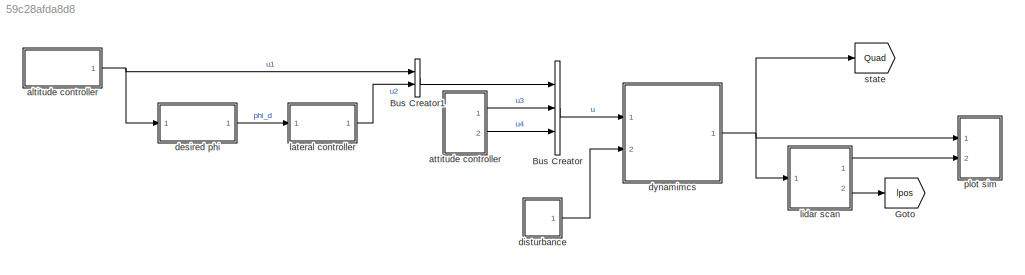
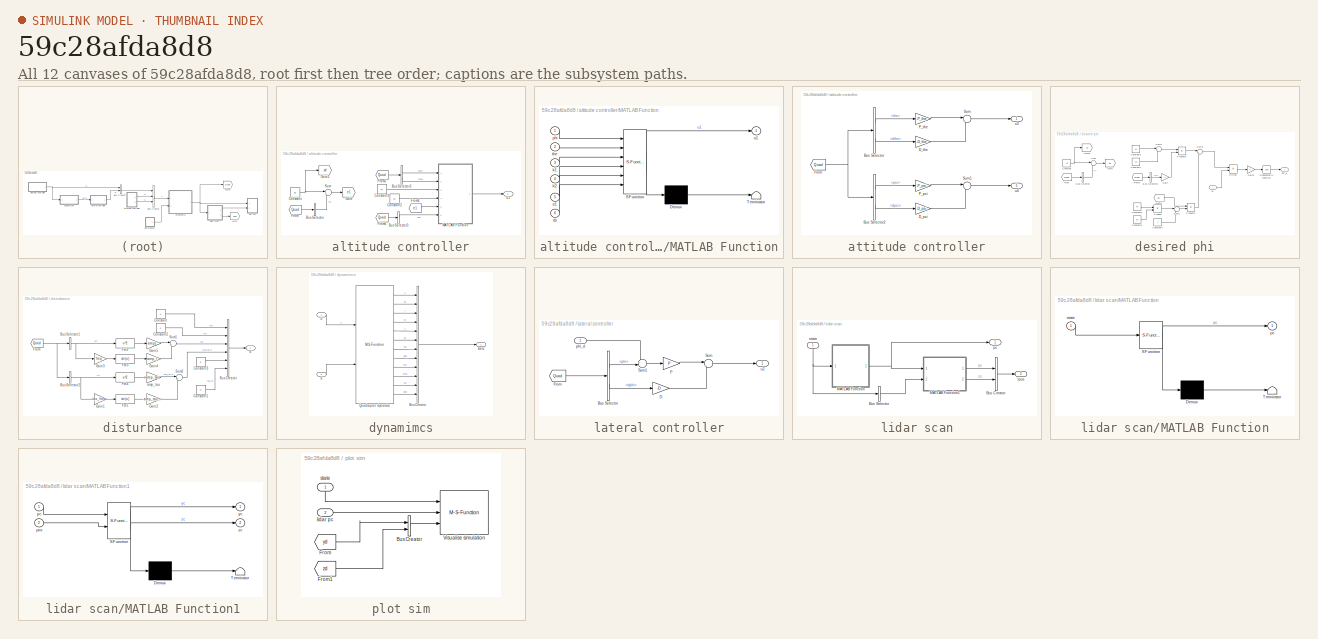
[diagram: thumbnail index - all 12 canvases of the model, root first then tree order]
MODEL slx_59c28afda8d8
KIND model
CONFIG AbsTol = auto
CONFIG EnableMultiTasking = off
CONFIG FixedStep = auto
CONFIG MaxStep = auto
CONFIG MinStep = auto
CONFIG RelTol = 1e-3
CONFIG SampleTimeConstraint = Unconstrained
CONFIG Solver = VariableStepAuto
CONFIG SolverName = VariableStepAuto
CONFIG StartTime = 0.0
CONFIG StopTime = 10.0
WORKSPACE source: external: MAT-File  (data not in archive)
BLOCK [BusCreator] Bus Creator
  DisplayOption = bar
  InheritFromInputs = on
  Inputs = 3
  Ports = [3, 1]
BLOCK [BusCreator] Bus Creator1
  DisplayOption = bar
  InheritFromInputs = on
  Inputs = 2
  Ports = [2, 1]
BLOCK [Goto] Goto
  GotoTag = lpos
  TagVisibility = global
BLOCK [SubSystem] altitude controller
  Ports = [0, 1]
  RequestExecContextInheritance = off
  Variant = off
BLOCK [BusSelector] altitude controller/Bus Selector
  OutputAsBus = off
  OutputSignals = z
  Ports = [1, 1]
BLOCK [BusSelector] altitude controller/Bus Selector2
  OutputAsBus = off
  OutputSignals = phi,the
  Ports = [1, 2]
BLOCK [BusSelector] altitude controller/Bus Selector3
  OutputAsBus = off
  OutputSignals = dz
  Ports = [1, 1]
BLOCK [Constant] altitude controller/Constant
  Value = zd
BLOCK [Constant] altitude controller/Constant1
  Value = k1
BLOCK [Constant] altitude controller/Constant2
  Value = k2
BLOCK [From] altitude controller/From
  GotoTag = Quad
  TagVisibility = global
BLOCK [From] altitude controller/From4
  GotoTag = e1
BLOCK [From] altitude controller/From5
  GotoTag = Quad
  TagVisibility = global
BLOCK [From] altitude controller/From6
  GotoTag = Quad
  TagVisibility = global
BLOCK [Goto] altitude controller/Goto
  GotoTag = e1
BLOCK [Goto] altitude controller/Goto1
  GotoTag = zd
  TagVisibility = global
BLOCK [SubSystem] altitude controller/MATLAB Function
  ErrorFcn = Stateflow.Translate.translate
  PermitHierarchicalResolution = ExplicitOnly
  Ports = [6, 1]
  RequestExecContextInheritance = off
  SFBlockType = MATLAB Function
  TreatAsAtomicUnit = on
  Variant = off
BLOCK [Demux] altitude controller/MATLAB Function/ Demux 
  Outputs = 1
  Ports = [1, 1]
BLOCK [S-Function] altitude controller/MATLAB Function/ SFunction 
  EnableBusSupport = on
  FunctionName = sf_sfun
  PortCounts = [6 2]
  Ports = [6, 2]
  SFcnIsStateOwnerBlock = off
  SFunctionDeploymentMode = off
  Tag = Stateflow S-Function backstepping 1
BLOCK [Terminator] altitude controller/MATLAB Function/ Terminator 
BLOCK [Inport] altitude controller/MATLAB Function/dz
  IconDisplay = Port number
  Port = 6
BLOCK [Inport] altitude controller/MATLAB Function/e1
  IconDisplay = Port number
  Port = 5
BLOCK [Inport] altitude controller/MATLAB Function/k1
  IconDisplay = Port number
  Port = 3
BLOCK [Inport] altitude controller/MATLAB Function/k2
  IconDisplay = Port number
  Port = 4
BLOCK [Inport] altitude controller/MATLAB Function/phi
  IconDisplay = Port number
BLOCK [Inport] altitude controller/MATLAB Function/the
  IconDisplay = Port number
  Port = 2
BLOCK [Outport] altitude controller/MATLAB Function/u1
  IconDisplay = Port number
BLOCK [Sum] altitude controller/Sum
  IconShape = round
  InputSameDT = off
  Inputs = |+-
  OutDataTypeStr = Inherit: Inherit via internal rule
  Ports = [2, 1]
  SaturateOnIntegerOverflow = off
BLOCK [Outport] altitude controller/u1
  IconDisplay = Port number
BLOCK [SubSystem] attitude controller
  Ports = [0, 2]
  RequestExecContextInheritance = off
  Variant = off
BLOCK [BusSelector] attitude controller/Bus Selector
  OutputAsBus = off
  OutputSignals = the,dthe
  Ports = [1, 2]
BLOCK [BusSelector] attitude controller/Bus Selector2
  OutputAsBus = off
  OutputSignals = psi,dpsi
  Ports = [1, 2]
BLOCK [Gain] attitude controller/D_psi
  Gain = -D_psi
  OutDataTypeStr = Inherit: Inherit via internal rule
  ParamDataTypeStr = Inherit: Inherit via internal rule
  SaturateOnIntegerOverflow = off
BLOCK [Gain] attitude controller/D_the
  Gain = -D_the
  OutDataTypeStr = Inherit: Inherit via internal rule
  ParamDataTypeStr = Inherit: Inherit via internal rule
  SaturateOnIntegerOverflow = off
BLOCK [From] attitude controller/From
  GotoTag = Quad
  TagVisibility = global
BLOCK [Gain] attitude controller/P_psi
  Gain = -P_psi
  OutDataTypeStr = Inherit: Inherit via internal rule
  ParamDataTypeStr = Inherit: Inherit via internal rule
  SaturateOnIntegerOverflow = off
BLOCK [Gain] attitude controller/P_the
  Gain = -P_the
  OutDataTypeStr = Inherit: Inherit via internal rule
  ParamDataTypeStr = Inherit: Inherit via internal rule
  SaturateOnIntegerOverflow = off
BLOCK [Sum] attitude controller/Sum
  IconShape = round
  InputSameDT = off
  Inputs = |++
  OutDataTypeStr = Inherit: Inherit via internal rule
  Ports = [2, 1]
  SaturateOnIntegerOverflow = off
BLOCK [Sum] attitude controller/Sum1
  IconShape = round
  InputSameDT = off
  Inputs = |++
  OutDataTypeStr = Inherit: Inherit via internal rule
  Ports = [2, 1]
  SaturateOnIntegerOverflow = off
BLOCK [Outport] attitude controller/u3
  IconDisplay = Port number
BLOCK [Outport] attitude controller/u4 
  IconDisplay = Port number
  Port = 2
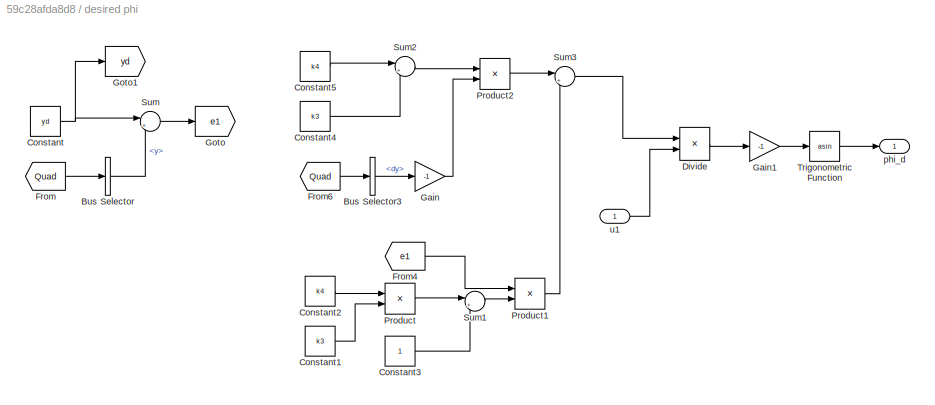
BLOCK [SubSystem] desired phi
  Ports = [1, 1]
  RequestExecContextInheritance = off
  Variant = off
BLOCK [BusSelector] desired phi/Bus Selector
  OutputAsBus = off
  OutputSignals = y
  Ports = [1, 1]
BLOCK [BusSelector] desired phi/Bus Selector3
  OutputAsBus = off
  OutputSignals = dy
  Ports = [1, 1]
BLOCK [Constant] desired phi/Constant
  Value = yd
BLOCK [Constant] desired phi/Constant1
  Value = k3
BLOCK [Constant] desired phi/Constant2
  Value = k4
BLOCK [Constant] desired phi/Constant3
BLOCK [Constant] desired phi/Constant4
  Value = k3
BLOCK [Constant] desired phi/Constant5
  Value = k4
BLOCK [Product] desired phi/Divide
  InputSameDT = off
  Inputs = */
  OutDataTypeStr = Inherit: Inherit via internal rule
  Ports = [2, 1]
  RndMeth = Floor
  SaturateOnIntegerOverflow = off
BLOCK [From] desired phi/From
  GotoTag = Quad
  TagVisibility = global
BLOCK [From] desired phi/From4
  GotoTag = e1
BLOCK [From] desired phi/From6
  GotoTag = Quad
  TagVisibility = global
BLOCK [Gain] desired phi/Gain
  Gain = -1
  OutDataTypeStr = Inherit: Inherit via internal rule
  ParamDataTypeStr = Inherit: Inherit via internal rule
  SaturateOnIntegerOverflow = off
BLOCK [Gain] desired phi/Gain1
  Gain = -1
  OutDataTypeStr = Inherit: Inherit via internal rule
  ParamDataTypeStr = Inherit: Inherit via internal rule
  SaturateOnIntegerOverflow = off
BLOCK [Goto] desired phi/Goto
  GotoTag = e1
BLOCK [Goto] desired phi/Goto1
  GotoTag = yd
  TagVisibility = global
BLOCK [Product] desired phi/Product
  InputSameDT = off
  OutDataTypeStr = Inherit: Inherit via internal rule
  Ports = [2, 1]
  RndMeth = Floor
  SaturateOnIntegerOverflow = off
BLOCK [Product] desired phi/Product1
  InputSameDT = off
  OutDataTypeStr = Inherit: Inherit via internal rule
  Ports = [2, 1]
  RndMeth = Floor
  SaturateOnIntegerOverflow = off
BLOCK [Product] desired phi/Product2
  InputSameDT = off
  OutDataTypeStr = Inherit: Inherit via internal rule
  Ports = [2, 1]
  RndMeth = Floor
  SaturateOnIntegerOverflow = off
BLOCK [Sum] desired phi/Sum
  IconShape = round
  InputSameDT = off
  Inputs = |+-
  OutDataTypeStr = Inherit: Inherit via internal rule
  Ports = [2, 1]
  SaturateOnIntegerOverflow = off
BLOCK [Sum] desired phi/Sum1
  IconShape = round
  InputSameDT = off
  Inputs = |++
  OutDataTypeStr = Inherit: Inherit via internal rule
  Ports = [2, 1]
  SaturateOnIntegerOverflow = off
BLOCK [Sum] desired phi/Sum2
  IconShape = round
  InputSameDT = off
  Inputs = |++
  OutDataTypeStr = Inherit: Inherit via internal rule
  Ports = [2, 1]
  SaturateOnIntegerOverflow = off
BLOCK [Sum] desired phi/Sum3
  IconShape = round
  InputSameDT = off
  Inputs = |++
  OutDataTypeStr = Inherit: Inherit via internal rule
  Ports = [2, 1]
  SaturateOnIntegerOverflow = off
BLOCK [Trigonometry] desired phi/Trigonometric Function
  Operator = asin
  Ports = [1, 1]
BLOCK [Outport] desired phi/phi_d
  IconDisplay = Port number
BLOCK [Inport] desired phi/u1
  IconDisplay = Port number
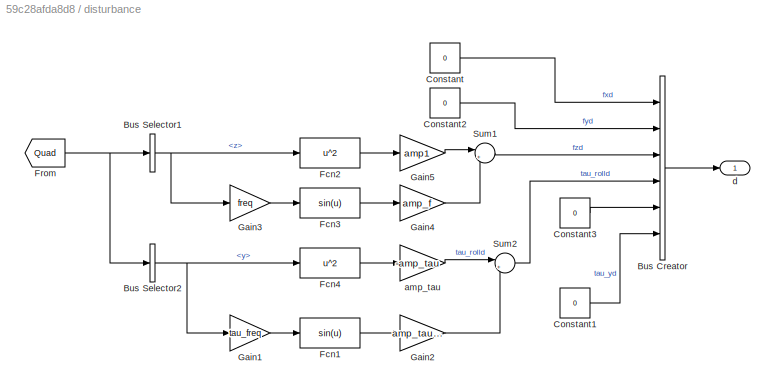
BLOCK [SubSystem] disturbance
  Ports = [0, 1]
  RequestExecContextInheritance = off
  Variant = off
BLOCK [BusCreator] disturbance/Bus Creator
  DisplayOption = bar
  InheritFromInputs = on
  Inputs = 6
  Ports = [6, 1]
BLOCK [BusSelector] disturbance/Bus Selector1
  OutputAsBus = off
  OutputSignals = z
  Ports = [1, 1]
BLOCK [BusSelector] disturbance/Bus Selector2
  OutputAsBus = off
  OutputSignals = y
  Ports = [1, 1]
BLOCK [Constant] disturbance/Constant
  Value = 0
BLOCK [Constant] disturbance/Constant1
  Value = 0
BLOCK [Constant] disturbance/Constant2
  Value = 0
BLOCK [Constant] disturbance/Constant3
  Value = 0
BLOCK [Fcn] disturbance/Fcn1
  Expr = sin(u)
BLOCK [Fcn] disturbance/Fcn2
  Expr = u^2
BLOCK [Fcn] disturbance/Fcn3
  Expr = sin(u)
BLOCK [Fcn] disturbance/Fcn4
  Expr = u^2
BLOCK [From] disturbance/From
  GotoTag = Quad
  TagVisibility = global
BLOCK [Gain] disturbance/Gain1
  Gain = tau_freq
  OutDataTypeStr = Inherit: Inherit via internal rule
  ParamDataTypeStr = Inherit: Inherit via internal rule
  SaturateOnIntegerOverflow = off
BLOCK [Gain] disturbance/Gain2
  Gain = amp_tau_freq
  OutDataTypeStr = Inherit: Inherit via internal rule
  ParamDataTypeStr = Inherit: Inherit via internal rule
  SaturateOnIntegerOverflow = off
BLOCK [Gain] disturbance/Gain3
  Gain = freq
  OutDataTypeStr = Inherit: Inherit via internal rule
  ParamDataTypeStr = Inherit: Inherit via internal rule
  SaturateOnIntegerOverflow = off
BLOCK [Gain] disturbance/Gain4
  Gain = amp_f
  OutDataTypeStr = Inherit: Inherit via internal rule
  ParamDataTypeStr = Inherit: Inherit via internal rule
  SaturateOnIntegerOverflow = off
BLOCK [Gain] disturbance/Gain5
  Gain = amp1
  OutDataTypeStr = Inherit: Inherit via internal rule
  ParamDataTypeStr = Inherit: Inherit via internal rule
  SaturateOnIntegerOverflow = off
BLOCK [Sum] disturbance/Sum1
  IconShape = round
  InputSameDT = off
  Inputs = |++
  OutDataTypeStr = Inherit: Inherit via internal rule
  Ports = [2, 1]
  SaturateOnIntegerOverflow = off
BLOCK [Sum] disturbance/Sum2
  IconShape = round
  InputSameDT = off
  Inputs = |++
  OutDataTypeStr = Inherit: Inherit via internal rule
  Ports = [2, 1]
  SaturateOnIntegerOverflow = off
BLOCK [Gain] disturbance/amp_tau
  Gain = -amp_tau
  OutDataTypeStr = Inherit: Inherit via internal rule
  ParamDataTypeStr = Inherit: Inherit via internal rule
  SaturateOnIntegerOverflow = off
BLOCK [Outport] disturbance/d
  IconDisplay = Port number
BLOCK [SubSystem] dynamimcs
  Ports = [2, 1]
  RequestExecContextInheritance = off
  Variant = off
BLOCK [BusCreator] dynamimcs/Bus Creator
  DisplayOption = bar
  InheritFromInputs = on
  Inputs = 12
  Ports = [12, 1]
BLOCK [M-S-Function] dynamimcs/Quadcopter dynamics
  FunctionName = SF_quad_dynamics_BS
  Parameters = quad
  Ports = [2, 12]
BLOCK [Inport] dynamimcs/d
  IconDisplay = Port number
  Port = 2
BLOCK [Outport] dynamimcs/state
  IconDisplay = Port number
BLOCK [Inport] dynamimcs/u
  IconDisplay = Port number
BLOCK [SubSystem] lateral controller
  Ports = [1, 1]
  RequestExecContextInheritance = off
  Variant = off
BLOCK [BusSelector] lateral controller/Bus Selector
  OutputAsBus = off
  OutputSignals = phi,dphi
  Ports = [1, 2]
BLOCK [Gain] lateral controller/D
  Gain = -D
  OutDataTypeStr = Inherit: Inherit via internal rule
  ParamDataTypeStr = Inherit: Inherit via internal rule
  SaturateOnIntegerOverflow = off
BLOCK [From] lateral controller/From
  GotoTag = Quad
  TagVisibility = global
BLOCK [Gain] lateral controller/P
  Gain = P
  OutDataTypeStr = Inherit: Inherit via internal rule
  ParamDataTypeStr = Inherit: Inherit via internal rule
  SaturateOnIntegerOverflow = off
BLOCK [Sum] lateral controller/Sum
  IconShape = round
  InputSameDT = off
  Inputs = |++
  OutDataTypeStr = Inherit: Inherit via internal rule
  Ports = [2, 1]
  SaturateOnIntegerOverflow = off
BLOCK [Sum] lateral controller/Sum1
  IconShape = round
  InputSameDT = off
  Inputs = +-|
  OutDataTypeStr = Inherit: Inherit via internal rule
  Ports = [2, 1]
  SaturateOnIntegerOverflow = off
BLOCK [Inport] lateral controller/phi_d
  IconDisplay = Port number
BLOCK [Outport] lateral controller/u2
  IconDisplay = Port number
BLOCK [SubSystem] lidar scan
  Ports = [1, 2]
  RequestExecContextInheritance = off
  Variant = off
BLOCK [BusCreator] lidar scan/Bus Creator
  DisplayOption = bar
  InheritFromInputs = on
  Inputs = 2
  Ports = [2, 1]
BLOCK [BusSelector] lidar scan/Bus Selector
  OutputAsBus = on
  OutputSignals = y,z
  Ports = [1, 1]
BLOCK [SubSystem] lidar scan/MATLAB Function
  ErrorFcn = Stateflow.Translate.translate
  PermitHierarchicalResolution = ExplicitOnly
  Ports = [1, 1]
  RequestExecContextInheritance = off
  SFBlockType = MATLAB Function
  TreatAsAtomicUnit = on
  Variant = off
BLOCK [Demux] lidar scan/MATLAB Function/ Demux 
  Outputs = 1
  Ports = [1, 1]
BLOCK [S-Function] lidar scan/MATLAB Function/ SFunction 
  EnableBusSupport = on
  FunctionName = sf_sfun
  PortCounts = [1 2]
  Ports = [1, 2]
  SFcnIsStateOwnerBlock = off
  SFunctionDeploymentMode = off
  Tag = Stateflow S-Function backstepping 2
BLOCK [Terminator] lidar scan/MATLAB Function/ Terminator 
BLOCK [Outport] lidar scan/MATLAB Function/pc
  IconDisplay = Port number
BLOCK [Inport] lidar scan/MATLAB Function/state
  IconDisplay = Port number
BLOCK [SubSystem] lidar scan/MATLAB Function1
  ErrorFcn = Stateflow.Translate.translate
  PermitHierarchicalResolution = ExplicitOnly
  Ports = [2, 2]
  RequestExecContextInheritance = off
  SFBlockType = MATLAB Function
  TreatAsAtomicUnit = on
  Variant = off
BLOCK [Demux] lidar scan/MATLAB Function1/ Demux 
  Outputs = 1
  Ports = [1, 1]
BLOCK [S-Function] lidar scan/MATLAB Function1/ SFunction 
  EnableBusSupport = on
  FunctionName = sf_sfun
  PortCounts = [2 3]
  Ports = [2, 3]
  SFcnIsStateOwnerBlock = off
  SFunctionDeploymentMode = off
  Tag = Stateflow S-Function backstepping 3
BLOCK [Terminator] lidar scan/MATLAB Function1/ Terminator 
BLOCK [Inport] lidar scan/MATLAB Function1/pc
  IconDisplay = Port number
BLOCK [Inport] lidar scan/MATLAB Function1/pos
  IconDisplay = Port number
  Port = 2
BLOCK [Outport] lidar scan/MATLAB Function1/yc
  IconDisplay = Port number
BLOCK [Outport] lidar scan/MATLAB Function1/zc
  IconDisplay = Port number
  Port = 2
BLOCK [Outport] lidar scan/lpos
  IconDisplay = Port number
  Port = 2
BLOCK [Outport] lidar scan/pc
  IconDisplay = Port number
BLOCK [Inport] lidar scan/state
  IconDisplay = Port number
BLOCK [SubSystem] plot sim
  Ports = [2]
  RequestExecContextInheritance = off
  Variant = off
BLOCK [BusCreator] plot sim/Bus Creator
  DisplayOption = bar
  InheritFromInputs = on
  Inputs = 2
  Ports = [2, 1]
BLOCK [From] plot sim/From
  GotoTag = yd
  TagVisibility = global
BLOCK [From] plot sim/From1
  GotoTag = zd
  TagVisibility = global
BLOCK [M-S-Function] plot sim/Visualise simulation 
  FunctionName = SF_plot_sim_BS
  Parameters = quad
  Ports = [3]
BLOCK [Inport] plot sim/lidar pc
  IconDisplay = Port number
  Port = 2
BLOCK [Inport] plot sim/state
  IconDisplay = Port number
BLOCK [Goto] state
  GotoTag = Quad
  TagVisibility = global
LINE Bus Creator1:1 -> Bus Creator:1
LINE Bus Creator:1 -> dynamimcs:1
LINE altitude controller/Bus Selector2:1 -> altitude controller/MATLAB Function:1
LINE altitude controller/Bus Selector2:2 -> altitude controller/MATLAB Function:2
LINE altitude controller/Bus Selector3:1 -> altitude controller/MATLAB Function:6
LINE altitude controller/Bus Selector:1 -> altitude controller/Sum:2
LINE altitude controller/Constant1:1 -> altitude controller/MATLAB Function:3
LINE altitude controller/Constant2:1 -> altitude controller/MATLAB Function:4
NET altitude controller/Constant:1 -> altitude controller/Goto1:1, altitude controller/Sum:1
LINE altitude controller/From4:1 -> altitude controller/MATLAB Function:5
LINE altitude controller/From5:1 -> altitude controller/Bus Selector2:1
LINE altitude controller/From6:1 -> altitude controller/Bus Selector3:1
LINE altitude controller/From:1 -> altitude controller/Bus Selector:1
LINE altitude controller/MATLAB Function:1 -> altitude controller/u1:1
LINE altitude controller/Sum:1 -> altitude controller/Goto:1
NET altitude controller:1 -> Bus Creator1:1, desired phi:1
LINE attitude controller/Bus Selector2:1 -> attitude controller/P_psi:1
LINE attitude controller/Bus Selector2:2 -> attitude controller/D_psi:1
LINE attitude controller/Bus Selector:1 -> attitude controller/P_the:1
LINE attitude controller/Bus Selector:2 -> attitude controller/D_the:1
LINE attitude controller/D_psi:1 -> attitude controller/Sum1:2
LINE attitude controller/D_the:1 -> attitude controller/Sum:2
NET attitude controller/From:1 -> attitude controller/Bus Selector2:1, attitude controller/Bus Selector:1
LINE attitude controller/P_psi:1 -> attitude controller/Sum1:1
LINE attitude controller/P_the:1 -> attitude controller/Sum:1
LINE attitude controller/Sum1:1 -> attitude controller/u4 :1
LINE attitude controller/Sum:1 -> attitude controller/u3:1
LINE attitude controller:1 -> Bus Creator:2
LINE attitude controller:2 -> Bus Creator:3
LINE desired phi/Bus Selector3:1 -> desired phi/Gain:1
LINE desired phi/Bus Selector:1 -> desired phi/Sum:2
LINE desired phi/Constant1:1 -> desired phi/Product:2
LINE desired phi/Constant2:1 -> desired phi/Product:1
LINE desired phi/Constant3:1 -> desired phi/Sum1:2
LINE desired phi/Constant4:1 -> desired phi/Sum2:2
LINE desired phi/Constant5:1 -> desired phi/Sum2:1
NET desired phi/Constant:1 -> desired phi/Goto1:1, desired phi/Sum:1
LINE desired phi/Divide:1 -> desired phi/Gain1:1
LINE desired phi/From4:1 -> desired phi/Product1:1
LINE desired phi/From6:1 -> desired phi/Bus Selector3:1
LINE desired phi/From:1 -> desired phi/Bus Selector:1
LINE desired phi/Gain1:1 -> desired phi/Trigonometric Function:1
LINE desired phi/Gain:1 -> desired phi/Product2:2
LINE desired phi/Product1:1 -> desired phi/Sum3:2
LINE desired phi/Product2:1 -> desired phi/Sum3:1
LINE desired phi/Product:1 -> desired phi/Sum1:1
LINE desired phi/Sum1:1 -> desired phi/Product1:2
LINE desired phi/Sum2:1 -> desired phi/Product2:1
LINE desired phi/Sum3:1 -> desired phi/Divide:1
LINE desired phi/Sum:1 -> desired phi/Goto:1
LINE desired phi/Trigonometric Function:1 -> desired phi/phi_d:1
LINE desired phi/u1:1 -> desired phi/Divide:2
LINE desired phi:1 -> lateral controller:1
LINE disturbance/Bus Creator:1 -> disturbance/d:1
NET disturbance/Bus Selector1:1 -> disturbance/Fcn2:1, disturbance/Gain3:1
NET disturbance/Bus Selector2:1 -> disturbance/Fcn4:1, disturbance/Gain1:1
LINE disturbance/Constant1:1 -> disturbance/Bus Creator:6
LINE disturbance/Constant2:1 -> disturbance/Bus Creator:2
LINE disturbance/Constant3:1 -> disturbance/Bus Creator:5
LINE disturbance/Constant:1 -> disturbance/Bus Creator:1
LINE disturbance/Fcn1:1 -> disturbance/Gain2:1
LINE disturbance/Fcn2:1 -> disturbance/Gain5:1
LINE disturbance/Fcn3:1 -> disturbance/Gain4:1
LINE disturbance/Fcn4:1 -> disturbance/amp_tau:1
NET disturbance/From:1 -> disturbance/Bus Selector1:1, disturbance/Bus Selector2:1
LINE disturbance/Gain1:1 -> disturbance/Fcn1:1
LINE disturbance/Gain2:1 -> disturbance/Sum2:2
LINE disturbance/Gain3:1 -> disturbance/Fcn3:1
LINE disturbance/Gain4:1 -> disturbance/Sum1:2
LINE disturbance/Gain5:1 -> disturbance/Sum1:1
LINE disturbance/Sum1:1 -> disturbance/Bus Creator:3
LINE disturbance/Sum2:1 -> disturbance/Bus Creator:4
LINE disturbance/amp_tau:1 -> disturbance/Sum2:1
LINE disturbance:1 -> dynamimcs:2
LINE dynamimcs/Bus Creator:1 -> dynamimcs/state:1
LINE dynamimcs/Quadcopter dynamics:1 -> dynamimcs/Bus Creator:1
LINE dynamimcs/Quadcopter dynamics:10 -> dynamimcs/Bus Creator:10
LINE dynamimcs/Quadcopter dynamics:11 -> dynamimcs/Bus Creator:11
LINE dynamimcs/Quadcopter dynamics:12 -> dynamimcs/Bus Creator:12
LINE dynamimcs/Quadcopter dynamics:2 -> dynamimcs/Bus Creator:2
LINE dynamimcs/Quadcopter dynamics:3 -> dynamimcs/Bus Creator:3
LINE dynamimcs/Quadcopter dynamics:4 -> dynamimcs/Bus Creator:4
LINE dynamimcs/Quadcopter dynamics:5 -> dynamimcs/Bus Creator:5
LINE dynamimcs/Quadcopter dynamics:6 -> dynamimcs/Bus Creator:6
LINE dynamimcs/Quadcopter dynamics:7 -> dynamimcs/Bus Creator:7
LINE dynamimcs/Quadcopter dynamics:8 -> dynamimcs/Bus Creator:8
LINE dynamimcs/Quadcopter dynamics:9 -> dynamimcs/Bus Creator:9
LINE dynamimcs/d:1 -> dynamimcs/Quadcopter dynamics:2
LINE dynamimcs/u:1 -> dynamimcs/Quadcopter dynamics:1
NET dynamimcs:1 -> lidar scan:1, plot sim:1, state:1
LINE lateral controller/Bus Selector:1 -> lateral controller/Sum1:2
LINE lateral controller/Bus Selector:2 -> lateral controller/D:1
LINE lateral controller/D:1 -> lateral controller/Sum:2
LINE lateral controller/From:1 -> lateral controller/Bus Selector:1
LINE lateral controller/P:1 -> lateral controller/Sum:1
LINE lateral controller/Sum1:1 -> lateral controller/P:1
LINE lateral controller/Sum:1 -> lateral controller/u2:1
LINE lateral controller/phi_d:1 -> lateral controller/Sum1:1
LINE lateral controller:1 -> Bus Creator1:2
LINE lidar scan/Bus Creator:1 -> lidar scan/lpos:1
LINE lidar scan/Bus Selector:1 -> lidar scan/MATLAB Function1:2
LINE lidar scan/MATLAB Function1:1 -> lidar scan/Bus Creator:1
LINE lidar scan/MATLAB Function1:2 -> lidar scan/Bus Creator:2
NET lidar scan/MATLAB Function:1 -> lidar scan/MATLAB Function1:1, lidar scan/pc:1
NET lidar scan/state:1 -> lidar scan/Bus Selector:1, lidar scan/MATLAB Function:1
LINE lidar scan:1 -> plot sim:2
LINE lidar scan:2 -> Goto:1
LINE plot sim/Bus Creator:1 -> plot sim/Visualise simulation :3
LINE plot sim/From1:1 -> plot sim/Bus Creator:2
LINE plot sim/From:1 -> plot sim/Bus Creator:1
LINE plot sim/lidar pc:1 -> plot sim/Visualise simulation :2
LINE plot sim/state:1 -> plot sim/Visualise simulation :1
note: NET lines group one-source signal fan-out (src -> all destinations, sorted); 1:1 wires keep LINE
CHART altitude controller/MATLAB Function states=1 transitions=1
  STATE_LABEL 'eML_blk_kernel()'
  STATE_LABEL 'SCRIPT:\nfunction u1 = ctrl_law(phi, the, k1, k2, e1, dz)\n\nu1 = (9.81 + 0 - (k1+k2)*dz + (1+k1*k2)*e1)/(cos(phi)*cos(the)) ;\n'
CHART lidar scan/MATLAB Function states=1 transitions=1
  STATE_LABEL 'eML_blk_kernel()'
  STATE_LABEL 'SCRIPT:\n%% need another and condition inside wall check\n\n\nfunction pc = lidar_scan_gen(state)\n\n%% init\ntunnel_r = 1.5;\ntunnel_l = 6; % tunnel length;\n\na = -135:0.25:135; % lidar FOV is 270 deg\n\na = a .* pi/180;\n\npc = zeros(length(a)+5, 3);\ntemp = zeros(length(a), 3);\n\nz_ceiling = 2 * tunnel_r;\nz_ground = 0;\n\nwall_left = -tunnel_r;\nwall_right = tunnel_r;\n\npos_x = state(1);\npos_y = state(3);\npos_z =...<+1356ch>'
CHART lidar scan/MATLAB Function1 states=1 transitions=1
  STATE_LABEL 'eML_blk_kernel()'
  STATE_LABEL 'SCRIPT:\nfunction [yc, zc] = get_centroid(pc, pos)\n\n% init\npc = pc(6:end, :);\nA = 0;\ncy = 0;\ncz = 0;\n\npy = pos(1);\npz = pos(2);\n\n\n\ny = pc(:,2) + py;\nz = pc(:,3) + pz -1.5;\n\nfor n = 1:length(pc)-1\n\n    A = A + (y(n) * z(n+1)) - (y(n+1) * z(n));\n\n    cy = cy + (y(n) + y(n+1)) * (y(n) * z(n+1) - y(n+1) * z(n));\n    cz = cz + (z(n) + z(n+1)) * (y(n) * z(n+1) - y(n+1) * z(n));\n  \nend\n\nA = A/2;\n\n\npos_loc...<+112ch>'
